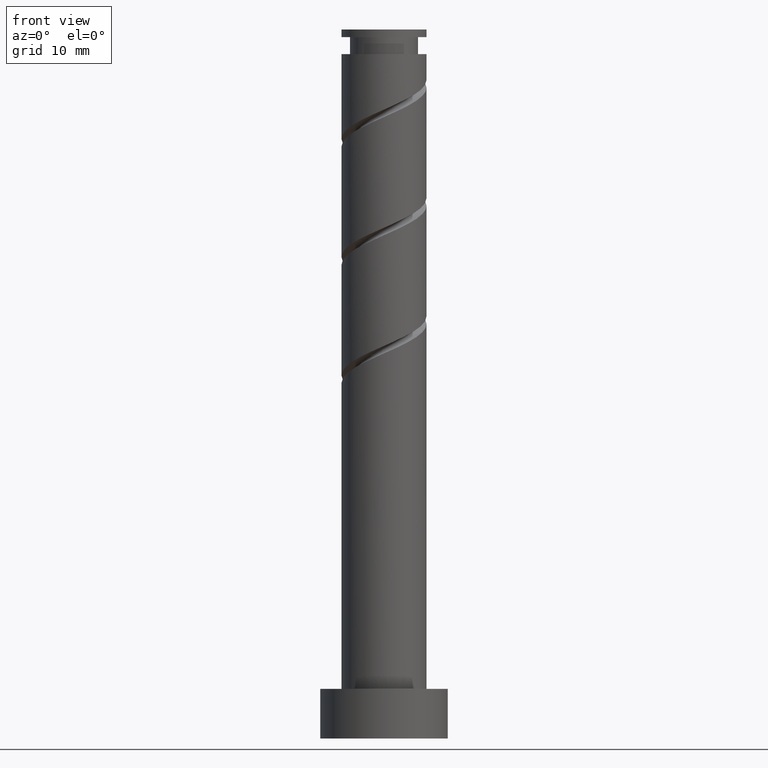
[diagram: clean part render]
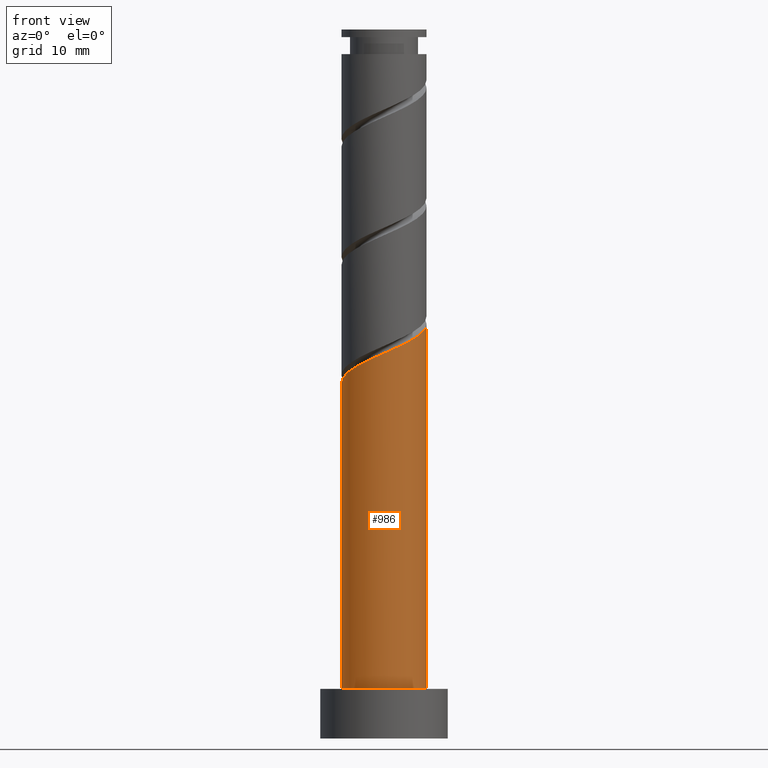
[diagram: same view with one face highlighted and labeled with its STEP entity id]
A machine part, front view. The second image highlights one B-rep face of the part: STEP entity #986.
In plain terms, the highlighted cylindrical surface (partial cylindrical patch) has radius 6 mm, axis along (-0, -0, -1).
Its self-contained STEP definition (entity closure, byte-faithful):
#1 = CARTESIAN_POINT ( 'NONE',  ( -5.195964084923264892, -3.181389724116668205, 51.61409522371366165 ) ) ;
#11 = CARTESIAN_POINT ( 'NONE',  ( 2.230787571093717503, -5.669468243246575057, 55.31779892741737825 ) ) ;
#97 = CARTESIAN_POINT ( 'NONE',  ( -6.000000000000000888, 0.000000000000000000, 7.000000000000000000 ) ) ;
#162 =( BOUNDED_CURVE ( )  B_SPLINE_CURVE ( 2, ( #221, #671, #1388, #1023, #1135, #1, #448, #910, #578, #1374, #795, #1264, #1277, #11, #245, #228, #678, #695, #1157, #1041, #1321 ),
 .UNSPECIFIED., .F., .T. ) 
 B_SPLINE_CURVE_WITH_KNOTS ( ( 3, 2, 2, 2, 2, 2, 2, 2, 2, 2, 3 ),
 ( 0.05452480538552904876, 0.05555555555555558023, 0.06944444444444441977, 0.08333333333333337034, 0.09722222222222220989, 0.1111111111111111605, 0.1250000000000000000, 0.1388888888888888395, 0.1527777777777777901, 0.1666666666666666297, 0.1795248053855290626 ),
 .UNSPECIFIED. ) 
 CURVE ( )  GEOMETRIC_REPRESENTATION_ITEM ( )  RATIONAL_B_SPLINE_CURVE ( ( 0.9071930855141250305, 0.9080659294509727530, 0.9090909090909129464, 0.8952797754656475204, 0.9090909090909129464, 0.8952797754656475204, 0.9090909090909129464, 0.8952797754656475204, 0.9090909090909129464, 0.8952797754656475204, 0.9090909090909129464, 0.8952797754656475204, 0.9090909090909129464, 0.8952797754656475204, 0.9090909090909129464, 0.8952797754656475204, 0.9090909090909129464, 0.8952797754656475204, 0.9090909090909129464, 0.8963047551055876028, 0.9071930855141251415 ) ) 
 REPRESENTATION_ITEM ( '' )  );
#166 = EDGE_CURVE ( 'NONE', #169, #291, #162, .T. ) ;
#169 = VERTEX_POINT ( 'NONE', #471 ) ;
#172 = CARTESIAN_POINT ( 'NONE',  ( -6.000000000000000888, 0.000000000000000000, 100.0000000000000000 ) ) ;
#221 = CARTESIAN_POINT ( 'NONE',  ( -6.000000000000011546, 4.362178231692964665E-15, 50.15731440946564135 ) ) ;
#228 = CARTESIAN_POINT ( 'NONE',  ( 4.035326960233208027, -4.564583187164259037, 56.24372485334330207 ) ) ;
#232 = CARTESIAN_POINT ( 'NONE',  ( 6.000000000000000888, 7.347880794884119736E-16, 7.000000000000000000 ) ) ;
#245 = CARTESIAN_POINT ( 'NONE',  ( 3.133057265663464985, -5.117025715205415715, 55.78076189038035437 ) ) ;
#282 = ORIENTED_EDGE ( 'NONE', *, *, #752, .T. ) ;
#291 = VERTEX_POINT ( 'NONE', #836 ) ;
#402 = AXIS2_PLACEMENT_3D ( 'NONE', #935, #1399, #475 ) ;
#448 = CARTESIAN_POINT ( 'NONE',  ( -4.495236911988537365, -3.974021276376850764, 52.07705818667665199 ) ) ;
#471 = CARTESIAN_POINT ( 'NONE',  ( -6.000000000000011546, 4.362178231692965454E-15, 50.15731440946564135 ) ) ;
#475 = DIRECTION ( 'NONE',  ( 1.000000000000000000, 0.000000000000000000, 0.000000000000000000 ) ) ;
#543 = DIRECTION ( 'NONE',  ( -0.000000000000000000, -0.000000000000000000, -1.000000000000000000 ) ) ;
#557 = LINE ( 'NONE', #172, #686 ) ;
#578 = CARTESIAN_POINT ( 'NONE',  ( -2.864945628354393481, -5.271820041178679084, 53.00298411260255449 ) ) ;
#599 = VERTEX_POINT ( 'NONE', #232 ) ;
#607 = VECTOR ( 'NONE', #543, 1000.000000000000000 ) ;
#652 = CARTESIAN_POINT ( 'NONE',  ( 6.000000000000000888, 7.347880794884119736E-16, 100.0000000000000000 ) ) ;
#671 = CARTESIAN_POINT ( 'NONE',  ( -6.000000000000011546, -0.07741004599212283899, 50.19133178339801304 ) ) ;
#678 = CARTESIAN_POINT ( 'NONE',  ( 4.694236661559322066, -3.736862609900517107, 56.70668781630627109 ) ) ;
#686 = VECTOR ( 'NONE', #1295, 1000.000000000000000 ) ;
#695 = CARTESIAN_POINT ( 'NONE',  ( 5.353146362885433440, -2.909142032636777842, 57.16965077926922589 ) ) ;
#752 = EDGE_CURVE ( 'NONE', #873, #599, #1017, .T. ) ;
#761 = AXIS2_PLACEMENT_3D ( 'NONE', #1261, #797, #1266 ) ;
#792 = CYLINDRICAL_SURFACE ( 'NONE', #761, 6.000000000000000888 ) ;
#795 = CARTESIAN_POINT ( 'NONE',  ( -0.8890996198464066191, -5.933759505236886334, 53.92891003852849963 ) ) ;
#797 = DIRECTION ( 'NONE',  ( -0.000000000000000000, -0.000000000000000000, -1.000000000000000000 ) ) ;
#836 = CARTESIAN_POINT ( 'NONE',  ( 6.000000000000010658, -4.227727532770921479E-15, 58.49064774279899837 ) ) ;
#873 = VERTEX_POINT ( 'NONE', #97 ) ;
#910 = CARTESIAN_POINT ( 'NONE',  ( -3.794509739053804509, -4.766652828637032435, 52.54002114963958547 ) ) ;
#935 = CARTESIAN_POINT ( 'NONE',  ( 0.000000000000000000, 0.000000000000000000, 7.000000000000000000 ) ) ;
#986 = ADVANCED_FACE ( 'NONE', ( #1475 ), #792, .T. ) ;
#1017 = CIRCLE ( 'NONE', #402, 6.000000000000000888 ) ;
#1018 = LINE ( 'NONE', #652, #607 ) ;
#1023 = CARTESIAN_POINT ( 'NONE',  ( -5.970708477888191368, -1.212404066556068249, 50.68816929778773073 ) ) ;
#1041 = CARTESIAN_POINT ( 'NONE',  ( 6.000000000000009770, -0.9783262309227460651, 58.06072823043336228 ) ) ;
#1135 = CARTESIAN_POINT ( 'NONE',  ( -5.583336281405729018, -2.196896895336367894, 51.15113226075071395 ) ) ;
#1138 = EDGE_LOOP ( 'NONE', ( #1152, #1143, #1353, #282 ) ) ;
#1143 = ORIENTED_EDGE ( 'NONE', *, *, #166, .F. ) ;
#1152 = ORIENTED_EDGE ( 'NONE', *, *, #1356, .F. ) ;
#1157 = CARTESIAN_POINT ( 'NONE',  ( 5.689221836516479947, -1.905978723623161342, 57.63261374223220912 ) ) ;
#1261 = CARTESIAN_POINT ( 'NONE',  ( 0.000000000000000000, 0.000000000000000000, 100.0000000000000000 ) ) ;
#1264 = CARTESIAN_POINT ( 'NONE',  ( 0.1571822779621672717, -6.090531756753446935, 54.39187300149146864 ) ) ;
#1266 = DIRECTION ( 'NONE',  ( -1.000000000000000000, 0.000000000000000000, 0.000000000000000000 ) ) ;
#1277 = CARTESIAN_POINT ( 'NONE',  ( 1.193984924527945024, -5.880000000000011440, 54.85483596445441634 ) ) ;
#1295 = DIRECTION ( 'NONE',  ( -0.000000000000000000, -0.000000000000000000, -1.000000000000000000 ) ) ;
#1321 = CARTESIAN_POINT ( 'NONE',  ( 6.000000000000010658, -4.227727532770921479E-15, 58.49064774279899837 ) ) ;
#1353 = ORIENTED_EDGE ( 'NONE', *, *, #1400, .T. ) ;
#1356 = EDGE_CURVE ( 'NONE', #291, #599, #1018, .T. ) ;
#1374 = CARTESIAN_POINT ( 'NONE',  ( -1.935381517654979788, -5.776987253720324844, 53.46594707556550929 ) ) ;
#1388 = CARTESIAN_POINT ( 'NONE',  ( -5.998002894017859354, -0.1547943259732638965, 50.22520633482479013 ) ) ;
#1399 = DIRECTION ( 'NONE',  ( 0.000000000000000000, 0.000000000000000000, 1.000000000000000000 ) ) ;
#1400 = EDGE_CURVE ( 'NONE', #169, #873, #557, .T. ) ;
#1475 = FACE_OUTER_BOUND ( 'NONE', #1138, .T. ) ;